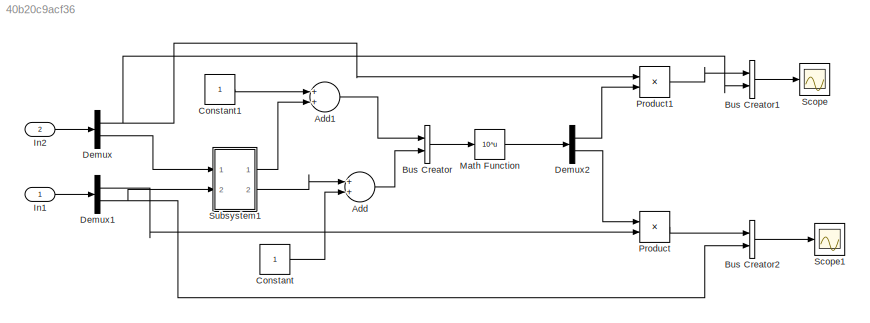
MODEL slx_40b20c9acf36
KIND model
CONFIG AbsTol = auto
CONFIG FixedStep = auto
CONFIG MaxStep = auto
CONFIG MinStep = auto
CONFIG RelTol = 1e-3
CONFIG SampleTimeConstraint = Unconstrained
CONFIG Solver = ode45
CONFIG SolverMode = Auto
CONFIG SolverName = ode45
CONFIG StartTime = 0.0
CONFIG StopTime = 10.0
BLOCK [Sum] Add
  InputSameDT = off
  OutDataTypeStr = Inherit: Inherit via internal rule
  Ports = [2, 1]
  SaturateOnIntegerOverflow = off
BLOCK [Sum] Add1
  InputSameDT = off
  OutDataTypeStr = Inherit: Inherit via internal rule
  Ports = [2, 1]
  SaturateOnIntegerOverflow = off
BLOCK [BusCreator] Bus Creator
  DisplayOption = bar
  Inputs = 2
  Ports = [2, 1]
BLOCK [BusCreator] Bus Creator1
  DisplayOption = bar
  Inputs = 2
  Ports = [2, 1]
BLOCK [BusCreator] Bus Creator2
  DisplayOption = bar
  Inputs = 2
  Ports = [2, 1]
BLOCK [Constant] Constant
BLOCK [Constant] Constant1
BLOCK [Demux] Demux
  DisplayOption = bar
  Outputs = 2
  Ports = [1, 2]
BLOCK [Demux] Demux1
  DisplayOption = bar
  Outputs = 2
  Ports = [1, 2]
BLOCK [Demux] Demux2
  DisplayOption = bar
  Outputs = 2
  Ports = [1, 2]
BLOCK [Inport] In1
  IconDisplay = Port number
BLOCK [Inport] In2
  IconDisplay = Port number
  Port = 2
BLOCK [Math] Math Function
  Operator = 10^u
  Ports = [1, 1]
BLOCK [Product] Product
  InputSameDT = off
  OutDataTypeStr = Inherit: Inherit via internal rule
  Ports = [2, 1]
  RndMeth = Floor
  SaturateOnIntegerOverflow = off
BLOCK [Product] Product1
  InputSameDT = off
  OutDataTypeStr = Inherit: Inherit via internal rule
  Ports = [2, 1]
  RndMeth = Floor
  SaturateOnIntegerOverflow = off
BLOCK [Scope] Scope
  Floating = off
  NumInputPorts = 1
  Ports = [1]
BLOCK [Scope] Scope1
  Floating = off
  NumInputPorts = 1
  Ports = [1]
  SaveName = ScopeData1
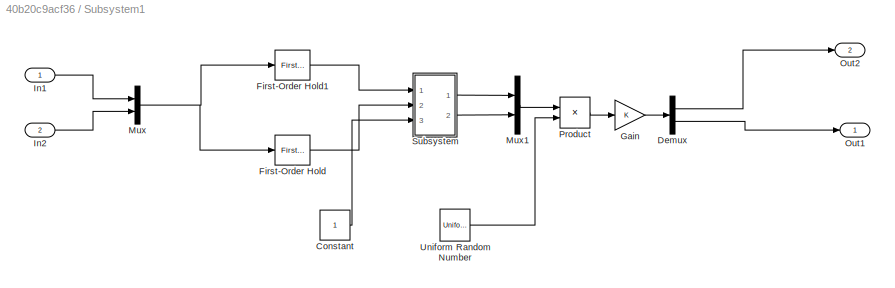
BLOCK [SubSystem] Subsystem1
  Ports = [2, 2]
  RequestExecContextInheritance = off
BLOCK [Constant] Subsystem1/Constant
BLOCK [Demux] Subsystem1/Demux
  DisplayOption = bar
  Outputs = 2
  Ports = [1, 2]
BLOCK [Reference] Subsystem1/First-Order Hold  REF=simulink/Discrete/First-Order
Hold
  DisableCoverage = on
  Ports = [1, 1]
  SourceBlock = simulink/Discrete/First-Order\nHold
  SourceType = First-Order Hold
  Ts = 1
BLOCK [Reference] Subsystem1/First-Order Hold1  REF=simulink/Discrete/First-Order
Hold
  DisableCoverage = on
  Ports = [1, 1]
  SourceBlock = simulink/Discrete/First-Order\nHold
  SourceType = First-Order Hold
  Ts = 1
BLOCK [Gain] Subsystem1/Gain
  OutDataTypeStr = Inherit: Inherit via internal rule
  ParamDataTypeStr = Inherit: Inherit via internal rule
  SaturateOnIntegerOverflow = off
BLOCK [Inport] Subsystem1/In1
  IconDisplay = Port number
BLOCK [Inport] Subsystem1/In2
  IconDisplay = Port number
  Port = 2
BLOCK [Mux] Subsystem1/Mux
  DisplayOption = bar
  Inputs = 2
  Ports = [2, 1]
BLOCK [Mux] Subsystem1/Mux1
  DisplayOption = bar
  Inputs = 2
  Ports = [2, 1]
BLOCK [Outport] Subsystem1/Out1
  IconDisplay = Port number
BLOCK [Outport] Subsystem1/Out2
  IconDisplay = Port number
  Port = 2
BLOCK [Product] Subsystem1/Product
  InputSameDT = off
  OutDataTypeStr = Inherit: Inherit via internal rule
  Ports = [2, 1]
  RndMeth = Floor
  SaturateOnIntegerOverflow = off
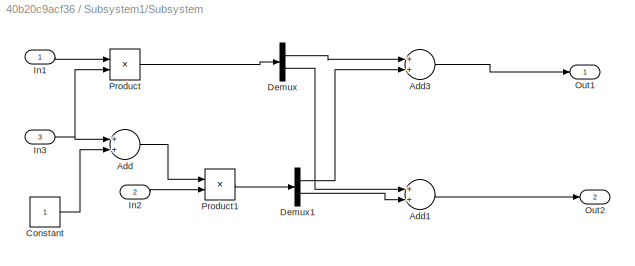
BLOCK [SubSystem] Subsystem1/Subsystem
  Ports = [3, 2]
  RequestExecContextInheritance = off
BLOCK [Sum] Subsystem1/Subsystem/Add
  InputSameDT = off
  OutDataTypeStr = Inherit: Inherit via internal rule
  Ports = [2, 1]
  SaturateOnIntegerOverflow = off
BLOCK [Sum] Subsystem1/Subsystem/Add1
  InputSameDT = off
  OutDataTypeStr = Inherit: Inherit via internal rule
  Ports = [2, 1]
  SaturateOnIntegerOverflow = off
BLOCK [Sum] Subsystem1/Subsystem/Add3
  InputSameDT = off
  OutDataTypeStr = Inherit: Inherit via internal rule
  Ports = [2, 1]
  SaturateOnIntegerOverflow = off
BLOCK [Constant] Subsystem1/Subsystem/Constant
BLOCK [Demux] Subsystem1/Subsystem/Demux
  DisplayOption = bar
  Outputs = 2
  Ports = [1, 2]
BLOCK [Demux] Subsystem1/Subsystem/Demux1
  DisplayOption = bar
  Outputs = 2
  Ports = [1, 2]
BLOCK [Inport] Subsystem1/Subsystem/In1
  IconDisplay = Port number
BLOCK [Inport] Subsystem1/Subsystem/In2
  IconDisplay = Port number
  Port = 2
BLOCK [Inport] Subsystem1/Subsystem/In3
  IconDisplay = Port number
  Port = 3
BLOCK [Outport] Subsystem1/Subsystem/Out1
  IconDisplay = Port number
BLOCK [Outport] Subsystem1/Subsystem/Out2
  IconDisplay = Port number
  Port = 2
BLOCK [Product] Subsystem1/Subsystem/Product
  InputSameDT = off
  OutDataTypeStr = Inherit: Inherit via internal rule
  Ports = [2, 1]
  RndMeth = Floor
  SaturateOnIntegerOverflow = off
BLOCK [Product] Subsystem1/Subsystem/Product1
  InputSameDT = off
  OutDataTypeStr = Inherit: Inherit via internal rule
  Ports = [2, 1]
  RndMeth = Floor
  SaturateOnIntegerOverflow = off
BLOCK [UniformRandomNumber] Subsystem1/Uniform Random Number
  SampleTime = 0.1
LINE Add1:1 -> Bus Creator:1
LINE Add:1 -> Bus Creator:2
LINE Bus Creator1:1 -> Scope:1
LINE Bus Creator2:1 -> Scope1:1
LINE Bus Creator:1 -> Math Function:1
LINE Constant1:1 -> Add1:1
LINE Constant:1 -> Add:2
LINE Demux1:1 -> Product:2
NET Demux1:2 -> Bus Creator2:2, Subsystem1:2
LINE Demux2:1 -> Product1:2
LINE Demux2:2 -> Product:1
NET Demux:1 -> Bus Creator1:2, Product1:1
LINE Demux:2 -> Subsystem1:1
LINE In1:1 -> Demux1:1
LINE In2:1 -> Demux:1
LINE Math Function:1 -> Demux2:1
LINE Product1:1 -> Bus Creator1:1
LINE Product:1 -> Bus Creator2:1
LINE Subsystem1/Constant:1 -> Subsystem1/Subsystem:3
LINE Subsystem1/Demux:1 -> Subsystem1/Out2:1
LINE Subsystem1/Demux:2 -> Subsystem1/Out1:1
LINE Subsystem1/First-Order Hold1:1 -> Subsystem1/Subsystem:1
LINE Subsystem1/First-Order Hold:1 -> Subsystem1/Subsystem:2
LINE Subsystem1/Gain:1 -> Subsystem1/Demux:1
LINE Subsystem1/In1:1 -> Subsystem1/Mux:1
LINE Subsystem1/In2:1 -> Subsystem1/Mux:2
LINE Subsystem1/Mux1:1 -> Subsystem1/Product:1
NET Subsystem1/Mux:1 -> Subsystem1/First-Order Hold1:1, Subsystem1/First-Order Hold:1
LINE Subsystem1/Product:1 -> Subsystem1/Gain:1
LINE Subsystem1/Subsystem/Add1:1 -> Subsystem1/Subsystem/Out2:1
LINE Subsystem1/Subsystem/Add3:1 -> Subsystem1/Subsystem/Out1:1
LINE Subsystem1/Subsystem/Add:1 -> Subsystem1/Subsystem/Product1:1
LINE Subsystem1/Subsystem/Constant:1 -> Subsystem1/Subsystem/Add:2
LINE Subsystem1/Subsystem/Demux1:1 -> Subsystem1/Subsystem/Add3:2
LINE Subsystem1/Subsystem/Demux1:2 -> Subsystem1/Subsystem/Add1:2
LINE Subsystem1/Subsystem/Demux:1 -> Subsystem1/Subsystem/Add3:1
LINE Subsystem1/Subsystem/Demux:2 -> Subsystem1/Subsystem/Add1:1
LINE Subsystem1/Subsystem/In1:1 -> Subsystem1/Subsystem/Product:1
LINE Subsystem1/Subsystem/In2:1 -> Subsystem1/Subsystem/Product1:2
NET Subsystem1/Subsystem/In3:1 -> Subsystem1/Subsystem/Add:1, Subsystem1/Subsystem/Product:2
LINE Subsystem1/Subsystem/Product1:1 -> Subsystem1/Subsystem/Demux1:1
LINE Subsystem1/Subsystem/Product:1 -> Subsystem1/Subsystem/Demux:1
LINE Subsystem1/Subsystem:1 -> Subsystem1/Mux1:1
LINE Subsystem1/Subsystem:2 -> Subsystem1/Mux1:2
LINE Subsystem1/Uniform Random Number:1 -> Subsystem1/Product:2
LINE Subsystem1:1 -> Add1:2
LINE Subsystem1:2 -> Add:1
note: NET lines group one-source signal fan-out (src -> all destinations, sorted); 1:1 wires keep LINE
